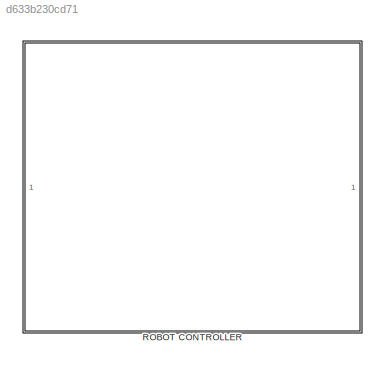
MODEL slx_d633b230cd71
KIND model
CONFIG AbsTol = auto
CONFIG EnableMultiTasking = off
CONFIG FixedStep = auto
CONFIG MaxStep = auto
CONFIG MinStep = auto
CONFIG RelTol = 1e-3
CONFIG SampleTimeConstraint = Unconstrained
CONFIG Solver = VariableStepAuto
CONFIG SolverName = VariableStepAuto
CONFIG StartTime = 0.0
CONFIG StopTime = 10.0
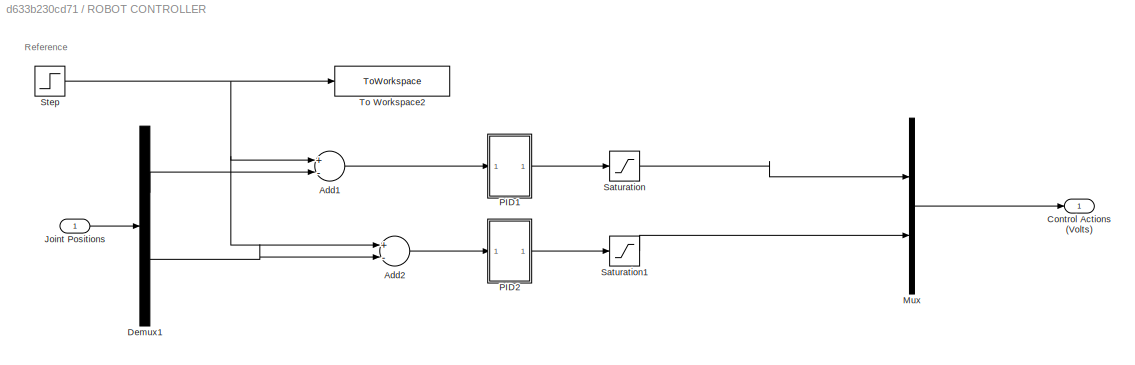
BLOCK [SubSystem] ROBOT CONTROLLER
  Description = ROBOT CONTROLLER
  Ports = [1, 1]
  RequestExecContextInheritance = off
BLOCK [Sum] ROBOT CONTROLLER/Add1
  InputSameDT = off
  Inputs = +-
  OutDataTypeStr = Inherit: Inherit via internal rule
  Ports = [2, 1]
  SaturateOnIntegerOverflow = off
BLOCK [Sum] ROBOT CONTROLLER/Add2
  InputSameDT = off
  Inputs = +-
  OutDataTypeStr = Inherit: Inherit via internal rule
  Ports = [2, 1]
  SaturateOnIntegerOverflow = off
BLOCK [Outport] ROBOT CONTROLLER/Control Actions (Volts)
  IconDisplay = Port number
BLOCK [Demux] ROBOT CONTROLLER/Demux1
  DisplayOption = bar
  Outputs = 2
  Ports = [1, 2]
BLOCK [Inport] ROBOT CONTROLLER/Joint Positions
  IconDisplay = Port number
  PortDimensions = 6
BLOCK [Mux] ROBOT CONTROLLER/Mux
  DisplayOption = bar
  Inputs = 2
  Ports = [2, 1]
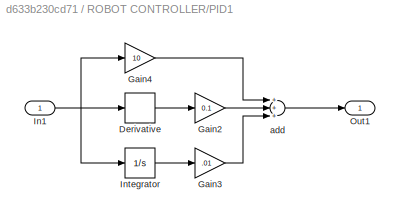
BLOCK [SubSystem] ROBOT CONTROLLER/PID1
  Ports = [1, 1]
  RequestExecContextInheritance = off
BLOCK [Derivative] ROBOT CONTROLLER/PID1/Derivative
BLOCK [Gain] ROBOT CONTROLLER/PID1/Gain2
  Gain = 0.1
  OutDataTypeStr = Inherit: Inherit via internal rule
  ParamDataTypeStr = Inherit: Inherit via internal rule
  SaturateOnIntegerOverflow = off
BLOCK [Gain] ROBOT CONTROLLER/PID1/Gain3
  Gain = .01
  OutDataTypeStr = Inherit: Inherit via internal rule
  ParamDataTypeStr = Inherit: Inherit via internal rule
  SaturateOnIntegerOverflow = off
BLOCK [Gain] ROBOT CONTROLLER/PID1/Gain4
  Gain = 10
  OutDataTypeStr = Inherit: Inherit via internal rule
  ParamDataTypeStr = Inherit: Inherit via internal rule
  SaturateOnIntegerOverflow = off
BLOCK [Inport] ROBOT CONTROLLER/PID1/In1
  IconDisplay = Port number
BLOCK [Integrator] ROBOT CONTROLLER/PID1/Integrator
  Ports = [1, 1]
BLOCK [Outport] ROBOT CONTROLLER/PID1/Out1
  IconDisplay = Port number
BLOCK [Sum] ROBOT CONTROLLER/PID1/add
  InputSameDT = off
  Inputs = +++
  OutDataTypeStr = Inherit: Inherit via internal rule
  Ports = [3, 1]
  SaturateOnIntegerOverflow = off
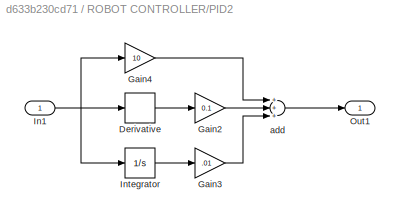
BLOCK [SubSystem] ROBOT CONTROLLER/PID2 
  Ports = [1, 1]
  RequestExecContextInheritance = off
BLOCK [Derivative] ROBOT CONTROLLER/PID2 /Derivative
BLOCK [Gain] ROBOT CONTROLLER/PID2 /Gain2
  Gain = 0.1
  OutDataTypeStr = Inherit: Inherit via internal rule
  ParamDataTypeStr = Inherit: Inherit via internal rule
  SaturateOnIntegerOverflow = off
BLOCK [Gain] ROBOT CONTROLLER/PID2 /Gain3
  Gain = .01
  OutDataTypeStr = Inherit: Inherit via internal rule
  ParamDataTypeStr = Inherit: Inherit via internal rule
  SaturateOnIntegerOverflow = off
BLOCK [Gain] ROBOT CONTROLLER/PID2 /Gain4
  Gain = 10
  OutDataTypeStr = Inherit: Inherit via internal rule
  ParamDataTypeStr = Inherit: Inherit via internal rule
  SaturateOnIntegerOverflow = off
BLOCK [Inport] ROBOT CONTROLLER/PID2 /In1
  IconDisplay = Port number
BLOCK [Integrator] ROBOT CONTROLLER/PID2 /Integrator
  Ports = [1, 1]
BLOCK [Outport] ROBOT CONTROLLER/PID2 /Out1
  IconDisplay = Port number
BLOCK [Sum] ROBOT CONTROLLER/PID2 /add
  InputSameDT = off
  Inputs = +++
  OutDataTypeStr = Inherit: Inherit via internal rule
  Ports = [3, 1]
  SaturateOnIntegerOverflow = off
BLOCK [Saturate] ROBOT CONTROLLER/Saturation
  InputPortMap = u0
  LowerLimit = -48
  Ports = [1, 1]
  UpperLimit = 48
BLOCK [Saturate] ROBOT CONTROLLER/Saturation1
  InputPortMap = u0
  LowerLimit = -48
  Ports = [1, 1]
  UpperLimit = 48
BLOCK [Step] ROBOT CONTROLLER/Step
  After = 0.3
  SampleTime = 0
  Time = 0
BLOCK [ToWorkspace] ROBOT CONTROLLER/To Workspace2
  MaxDataPoints = inf
  Ports = [1]
  SampleTime = -1
  VariableName = reference
ANNOTATION ROBOT CONTROLLER: Reference
LINE ROBOT CONTROLLER/Add1:1 -> ROBOT CONTROLLER/PID1:1
LINE ROBOT CONTROLLER/Add2:1 -> ROBOT CONTROLLER/PID2 :1
LINE ROBOT CONTROLLER/Demux1:1 -> ROBOT CONTROLLER/Add1:2
LINE ROBOT CONTROLLER/Demux1:2 -> ROBOT CONTROLLER/Add2:2
LINE ROBOT CONTROLLER/Joint Positions:1 -> ROBOT CONTROLLER/Demux1:1
LINE ROBOT CONTROLLER/Mux:1 -> ROBOT CONTROLLER/Control Actions (Volts):1
LINE ROBOT CONTROLLER/PID1/Derivative:1 -> ROBOT CONTROLLER/PID1/Gain2:1
LINE ROBOT CONTROLLER/PID1/Gain2:1 -> ROBOT CONTROLLER/PID1/add:2
LINE ROBOT CONTROLLER/PID1/Gain3:1 -> ROBOT CONTROLLER/PID1/add:3
LINE ROBOT CONTROLLER/PID1/Gain4:1 -> ROBOT CONTROLLER/PID1/add:1
NET ROBOT CONTROLLER/PID1/In1:1 -> ROBOT CONTROLLER/PID1/Derivative:1, ROBOT CONTROLLER/PID1/Gain4:1, ROBOT CONTROLLER/PID1/Integrator:1
LINE ROBOT CONTROLLER/PID1/Integrator:1 -> ROBOT CONTROLLER/PID1/Gain3:1
LINE ROBOT CONTROLLER/PID1/add:1 -> ROBOT CONTROLLER/PID1/Out1:1
LINE ROBOT CONTROLLER/PID1:1 -> ROBOT CONTROLLER/Saturation:1
LINE ROBOT CONTROLLER/PID2 /Derivative:1 -> ROBOT CONTROLLER/PID2 /Gain2:1
LINE ROBOT CONTROLLER/PID2 /Gain2:1 -> ROBOT CONTROLLER/PID2 /add:2
LINE ROBOT CONTROLLER/PID2 /Gain3:1 -> ROBOT CONTROLLER/PID2 /add:3
LINE ROBOT CONTROLLER/PID2 /Gain4:1 -> ROBOT CONTROLLER/PID2 /add:1
NET ROBOT CONTROLLER/PID2 /In1:1 -> ROBOT CONTROLLER/PID2 /Derivative:1, ROBOT CONTROLLER/PID2 /Gain4:1, ROBOT CONTROLLER/PID2 /Integrator:1
LINE ROBOT CONTROLLER/PID2 /Integrator:1 -> ROBOT CONTROLLER/PID2 /Gain3:1
LINE ROBOT CONTROLLER/PID2 /add:1 -> ROBOT CONTROLLER/PID2 /Out1:1
LINE ROBOT CONTROLLER/PID2 :1 -> ROBOT CONTROLLER/Saturation1:1
LINE ROBOT CONTROLLER/Saturation1:1 -> ROBOT CONTROLLER/Mux:2
LINE ROBOT CONTROLLER/Saturation:1 -> ROBOT CONTROLLER/Mux:1
NET ROBOT CONTROLLER/Step:1 -> ROBOT CONTROLLER/Add1:1, ROBOT CONTROLLER/Add2:1, ROBOT CONTROLLER/To Workspace2:1
note: NET lines group one-source signal fan-out (src -> all destinations, sorted); 1:1 wires keep LINE
